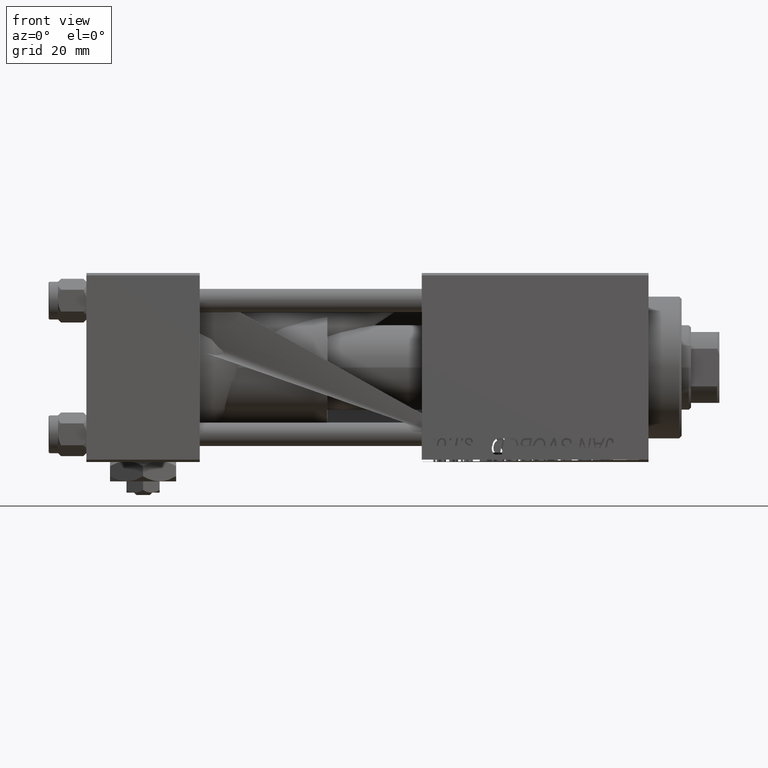
[diagram: clean part render]
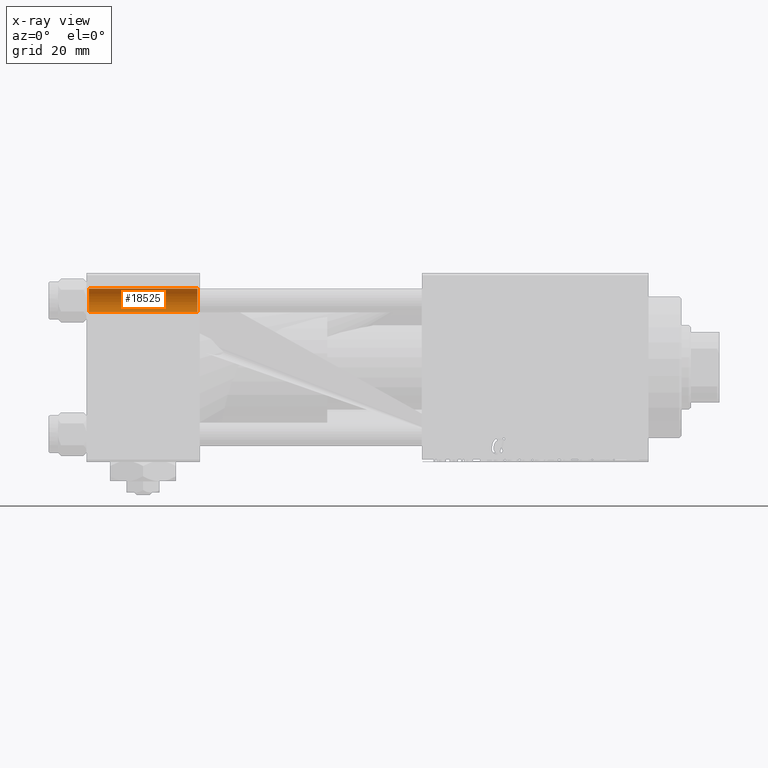
[diagram: x-ray — body ghosted, one internal face saturated and labeled with its STEP entity id]
A machine part, front view, then the same camera in x-ray: the body is ghosted and one INTERNAL B-rep face — a face not visible from any outside direction — is saturated and labeled: STEP entity #18525.
In plain terms, the highlighted cylindrical surface (edge-blend (fillet) strip) has radius 2.5 mm, axis along (-1, -0, -0).
Its self-contained STEP definition (entity closure, byte-faithful):
#4908 = LINE ( 'NONE', #17227, #28906 ) ;
#8224 = DIRECTION ( 'NONE',  ( -1.000000000000000000, 0.000000000000000000, 0.000000000000000000 ) ) ;
#9036 = DIRECTION ( 'NONE',  ( 1.000000000000000000, -0.000000000000000000, -0.000000000000000000 ) ) ;
#9715 = CIRCLE ( 'NONE', #49008, 2.499999999999993339 ) ;
#11696 = VERTEX_POINT ( 'NONE', #26865 ) ;
#12595 = LINE ( 'NONE', #32273, #25611 ) ;
#12631 = FACE_OUTER_BOUND ( 'NONE', #27334, .T. ) ;
#13151 = DIRECTION ( 'NONE',  ( 0.000000000000000000, 0.000000000000000000, 1.000000000000000000 ) ) ;
#13186 = DIRECTION ( 'NONE',  ( 0.000000000000000000, 0.000000000000000000, 1.000000000000000000 ) ) ;
#16034 = VERTEX_POINT ( 'NONE', #31710 ) ;
#17152 = DIRECTION ( 'NONE',  ( 0.000000000000000000, 0.000000000000000000, 1.000000000000000000 ) ) ;
#17227 = CARTESIAN_POINT ( 'NONE',  ( 24.00000000000000000, 14.14999999999999858, 16.64999999999999503 ) ) ;
#17345 = CYLINDRICAL_SURFACE ( 'NONE', #51449, 2.499999999999993339 ) ;
#17885 = ORIENTED_EDGE ( 'NONE', *, *, #26352, .T. ) ;
#18525 = ADVANCED_FACE ( 'NONE', ( #12631 ), #17345, .F. ) ;
#18980 = AXIS2_PLACEMENT_3D ( 'NONE', #33151, #9036, #17152 ) ;
#19904 = EDGE_CURVE ( 'NONE', #11696, #36525, #4908, .T. ) ;
#20722 = EDGE_CURVE ( 'NONE', #36500, #16034, #12595, .T. ) ;
#21486 = EDGE_CURVE ( 'NONE', #36525, #16034, #9715, .T. ) ;
#25201 = DIRECTION ( 'NONE',  ( -1.000000000000000000, -0.000000000000000000, -0.000000000000000000 ) ) ;
#25611 = VECTOR ( 'NONE', #44297, 1000.000000000000000 ) ;
#26352 = EDGE_CURVE ( 'NONE', #36500, #11696, #28188, .T. ) ;
#26865 = CARTESIAN_POINT ( 'NONE',  ( 23.50000000000000000, 14.14999999999999858, 16.64999999999999503 ) ) ;
#27334 = EDGE_LOOP ( 'NONE', ( #39481, #17885, #46829, #32395 ) ) ;
#28188 = CIRCLE ( 'NONE', #18980, 2.499999999999993339 ) ;
#28906 = VECTOR ( 'NONE', #33224, 1000.000000000000000 ) ;
#30616 = CARTESIAN_POINT ( 'NONE',  ( 0.4999999999999900080, 14.14999999999999858, 16.64999999999999503 ) ) ;
#31598 = CARTESIAN_POINT ( 'NONE',  ( 24.00000000000000000, 14.14999999999999858, 14.15000000000000036 ) ) ;
#31710 = CARTESIAN_POINT ( 'NONE',  ( 0.4999999999999900080, 14.14999999999999858, 11.65000000000000746 ) ) ;
#32273 = CARTESIAN_POINT ( 'NONE',  ( 24.00000000000000000, 14.14999999999999858, 11.65000000000000746 ) ) ;
#32395 = ORIENTED_EDGE ( 'NONE', *, *, #21486, .T. ) ;
#33151 = CARTESIAN_POINT ( 'NONE',  ( 23.50000000000000000, 14.14999999999999858, 14.15000000000000036 ) ) ;
#33224 = DIRECTION ( 'NONE',  ( -1.000000000000000000, -0.000000000000000000, -0.000000000000000000 ) ) ;
#35306 = CARTESIAN_POINT ( 'NONE',  ( 23.50000000000000000, 14.14999999999999858, 11.65000000000000746 ) ) ;
#36500 = VERTEX_POINT ( 'NONE', #35306 ) ;
#36525 = VERTEX_POINT ( 'NONE', #30616 ) ;
#39481 = ORIENTED_EDGE ( 'NONE', *, *, #20722, .F. ) ;
#44297 = DIRECTION ( 'NONE',  ( -1.000000000000000000, -0.000000000000000000, -0.000000000000000000 ) ) ;
#46829 = ORIENTED_EDGE ( 'NONE', *, *, #19904, .T. ) ;
#48549 = CARTESIAN_POINT ( 'NONE',  ( 0.4999999999999900080, 14.14999999999999858, 14.15000000000000036 ) ) ;
#49008 = AXIS2_PLACEMENT_3D ( 'NONE', #48549, #8224, #13186 ) ;
#51449 = AXIS2_PLACEMENT_3D ( 'NONE', #31598, #25201, #13151 ) ;